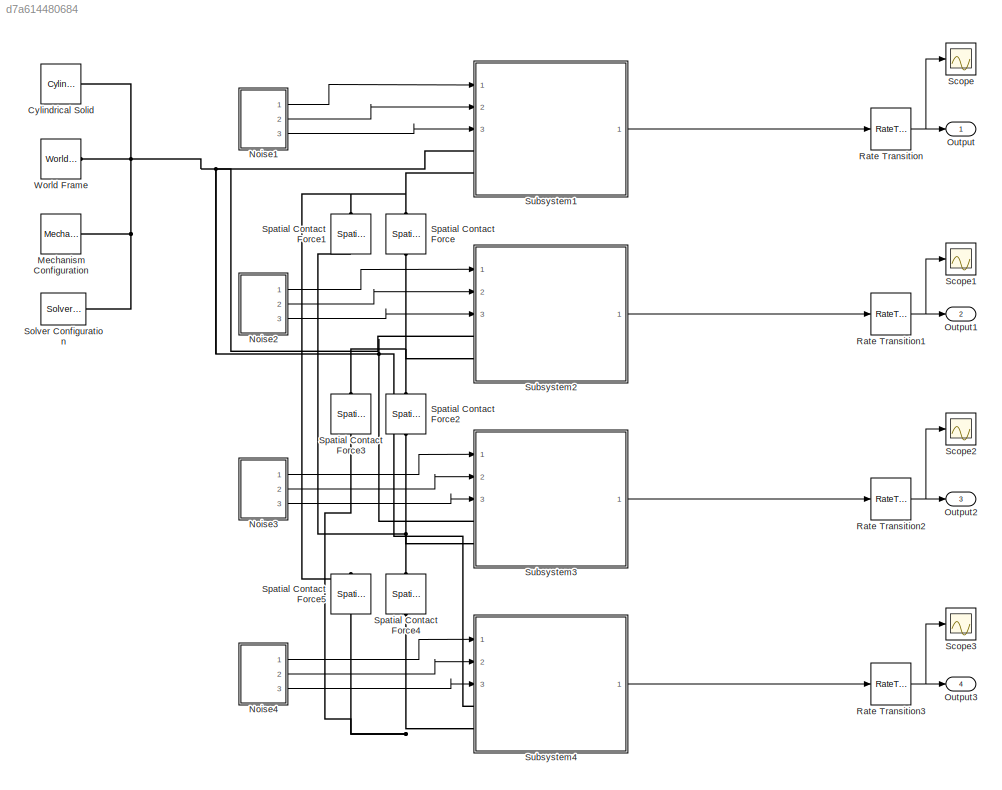
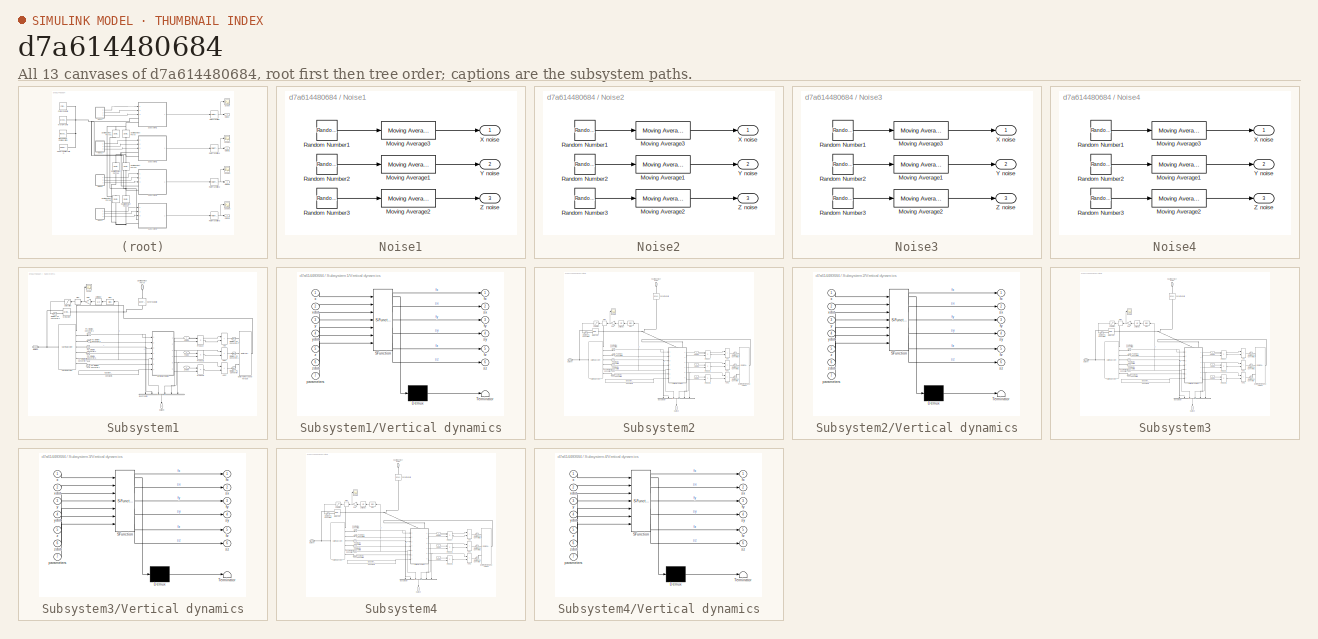
[diagram: thumbnail index - all 13 canvases of the model, root first then tree order]
MODEL slx_d7a614480684
KIND model
CONFIG AbsTol = auto
CONFIG EnableMultiTasking = off
CONFIG FixedStep = auto
CONFIG InitFcn = seed1 = randi(100000);\nseed2 = randi(200000);
CONFIG MaxStep = auto
CONFIG MinStep = auto
CONFIG RelTol = 1e-3
CONFIG SampleTimeConstraint = Unconstrained
CONFIG SolverName = VariableStepAuto
CONFIG StartTime = 0.0
CONFIG StopTime = 300
BLOCK [Reference] Cylindrical Solid  REF=sm_lib/Body Elements/Cylindrical Solid
  Ports = [0, 0, 0, 0, 0, 0, 1]
  SourceBlock = sm_lib/Body Elements/Cylindrical Solid
  SourceProductBaseCode = MS
  SourceType = Cylindrical Solid
BLOCK [Reference] Mechanism Configuration  REF=sm_lib/Utilities/Mechanism
Configuration
  Ports = [0, 0, 0, 0, 0, 0, 1]
  SourceBlock = sm_lib/Utilities/Mechanism\nConfiguration
  SourceProductBaseCode = MS
  SourceType = Mechanism\nConfiguration
BLOCK [SubSystem] Noise1
  Ports = [0, 3]
  RequestExecContextInheritance = off
BLOCK [Outport] Noise1/ Y noise
  Port = 2
BLOCK [Reference] Noise1/Moving Average1  REF=eeGeneralControl/Moving Average
  Ports = [1, 1]
  SourceBlock = eeGeneralControl/Moving Average
  SourceProductBaseCode = PS
  SourceType = Moving Average
BLOCK [Reference] Noise1/Moving Average2  REF=eeGeneralControl/Moving Average
  Ports = [1, 1]
  SourceBlock = eeGeneralControl/Moving Average
  SourceProductBaseCode = PS
  SourceType = Moving Average
BLOCK [Reference] Noise1/Moving Average3  REF=eeGeneralControl/Moving Average
  Ports = [1, 1]
  SourceBlock = eeGeneralControl/Moving Average
  SourceProductBaseCode = PS
  SourceType = Moving Average
BLOCK [RandomNumber] Noise1/Random Number1
  SampleTime = nS
  Seed = seedX1
  Variance = nH
BLOCK [RandomNumber] Noise1/Random Number2
  SampleTime = nS
  Seed = seedY1
  Variance = nH
BLOCK [RandomNumber] Noise1/Random Number3
  SampleTime = nS
  Seed = seedZ1
  Variance = nV
BLOCK [Outport] Noise1/X noise
BLOCK [Outport] Noise1/Z noise
  Port = 3
BLOCK [SubSystem] Noise2
  Ports = [0, 3]
  RequestExecContextInheritance = off
BLOCK [Outport] Noise2/ Y noise
  Port = 2
BLOCK [Reference] Noise2/Moving Average1  REF=eeGeneralControl/Moving Average
  Ports = [1, 1]
  SourceBlock = eeGeneralControl/Moving Average
  SourceProductBaseCode = PS
  SourceType = Moving Average
BLOCK [Reference] Noise2/Moving Average2  REF=eeGeneralControl/Moving Average
  Ports = [1, 1]
  SourceBlock = eeGeneralControl/Moving Average
  SourceProductBaseCode = PS
  SourceType = Moving Average
BLOCK [Reference] Noise2/Moving Average3  REF=eeGeneralControl/Moving Average
  Ports = [1, 1]
  SourceBlock = eeGeneralControl/Moving Average
  SourceProductBaseCode = PS
  SourceType = Moving Average
BLOCK [RandomNumber] Noise2/Random Number1
  SampleTime = nS
  Seed = seedX2
  Variance = nH
BLOCK [RandomNumber] Noise2/Random Number2
  SampleTime = nS
  Seed = seedY2
  Variance = nH
BLOCK [RandomNumber] Noise2/Random Number3
  SampleTime = nS
  Seed = seedZ2
  Variance = nV
BLOCK [Outport] Noise2/X noise
BLOCK [Outport] Noise2/Z noise
  Port = 3
BLOCK [SubSystem] Noise3
  Ports = [0, 3]
  RequestExecContextInheritance = off
BLOCK [Outport] Noise3/ Y noise
  Port = 2
BLOCK [Reference] Noise3/Moving Average1  REF=eeGeneralControl/Moving Average
  Ports = [1, 1]
  SourceBlock = eeGeneralControl/Moving Average
  SourceProductBaseCode = PS
  SourceType = Moving Average
BLOCK [Reference] Noise3/Moving Average2  REF=eeGeneralControl/Moving Average
  Ports = [1, 1]
  SourceBlock = eeGeneralControl/Moving Average
  SourceProductBaseCode = PS
  SourceType = Moving Average
BLOCK [Reference] Noise3/Moving Average3  REF=eeGeneralControl/Moving Average
  Ports = [1, 1]
  SourceBlock = eeGeneralControl/Moving Average
  SourceProductBaseCode = PS
  SourceType = Moving Average
BLOCK [RandomNumber] Noise3/Random Number1
  SampleTime = nS
  Seed = seedX3
  Variance = nH
BLOCK [RandomNumber] Noise3/Random Number2
  SampleTime = nS
  Seed = seedY3
  Variance = nH
BLOCK [RandomNumber] Noise3/Random Number3
  SampleTime = nS
  Seed = seedZ3
  Variance = nV
BLOCK [Outport] Noise3/X noise
BLOCK [Outport] Noise3/Z noise
  Port = 3
BLOCK [SubSystem] Noise4
  Ports = [0, 3]
  RequestExecContextInheritance = off
BLOCK [Outport] Noise4/ Y noise
  Port = 2
BLOCK [Reference] Noise4/Moving Average1  REF=eeGeneralControl/Moving Average
  Ports = [1, 1]
  SourceBlock = eeGeneralControl/Moving Average
  SourceProductBaseCode = PS
  SourceType = Moving Average
BLOCK [Reference] Noise4/Moving Average2  REF=eeGeneralControl/Moving Average
  Ports = [1, 1]
  SourceBlock = eeGeneralControl/Moving Average
  SourceProductBaseCode = PS
  SourceType = Moving Average
BLOCK [Reference] Noise4/Moving Average3  REF=eeGeneralControl/Moving Average
  Ports = [1, 1]
  SourceBlock = eeGeneralControl/Moving Average
  SourceProductBaseCode = PS
  SourceType = Moving Average
BLOCK [RandomNumber] Noise4/Random Number1
  SampleTime = nS
  Seed = seedX4
  Variance = nH
BLOCK [RandomNumber] Noise4/Random Number2
  SampleTime = nS
  Seed = seedY4
  Variance = nH
BLOCK [RandomNumber] Noise4/Random Number3
  SampleTime = nS
  Seed = seedZ4
  Variance = nV
BLOCK [Outport] Noise4/X noise
BLOCK [Outport] Noise4/Z noise
  Port = 3
BLOCK [Outport] Output
BLOCK [Outport] Output1
  Port = 2
BLOCK [Outport] Output2
  Port = 3
BLOCK [Outport] Output3
  Port = 4
BLOCK [RateTransition] Rate Transition
  OutPortSampleTime = 1/30
BLOCK [RateTransition] Rate Transition1
  OutPortSampleTime = 1/30
BLOCK [RateTransition] Rate Transition2
  OutPortSampleTime = 1/30
BLOCK [RateTransition] Rate Transition3
  OutPortSampleTime = 1/30
BLOCK [Scope] Scope
  Floating = off
  NumInputPorts = 1
  Ports = [1]
  ScopeSpecificationString = Simulink.scopes.TimeScopeBlockCfg('CurrentConfiguration', extmgr.ConfigurationSet(extmgr.Configuration('Core','General UI',true),extmgr.Configuration('Core','Source UI',true),extmgr.Configuration('Sources','WiredSimulink',true,'DataLoggingVariableName','ScopeData1'),extmgr.Configuration('Visuals','Time Domain',true,'SerializedDisplays',{struct('MinYLimReal','-1.07068','MaxYLimReal','1.0184','YLabe...<+1551ch>
BLOCK [Scope] Scope1
  Floating = off
  NumInputPorts = 1
  Ports = [1]
  ScopeSpecificationString = Simulink.scopes.TimeScopeBlockCfg('CurrentConfiguration', extmgr.ConfigurationSet(extmgr.Configuration('Core','General UI',true),extmgr.Configuration('Core','Source UI',true),extmgr.Configuration('Sources','WiredSimulink',true,'DataLoggingVariableName','ScopeData2'),extmgr.Configuration('Visuals','Time Domain',true,'SerializedDisplays',{struct('MinYLimReal','-157.50413','MaxYLimReal','351.95836','...<+1529ch>
BLOCK [Scope] Scope2
  Floating = off
  NumInputPorts = 1
  Ports = [1]
  ScopeSpecificationString = Simulink.scopes.TimeScopeBlockCfg('CurrentConfiguration', extmgr.ConfigurationSet(extmgr.Configuration('Core','General UI',true),extmgr.Configuration('Core','Source UI',true),extmgr.Configuration('Sources','WiredSimulink',true,'DataLoggingVariableName','ScopeData3'),extmgr.Configuration('Visuals','Time Domain',true,'SerializedDisplays',{struct('MinYLimReal','-175.75012','MaxYLimReal','108.87636','...<+1529ch>
BLOCK [Scope] Scope3
  Floating = off
  NumInputPorts = 1
  Ports = [1]
  ScopeSpecificationString = Simulink.scopes.TimeScopeBlockCfg('CurrentConfiguration', extmgr.ConfigurationSet(extmgr.Configuration('Core','General UI',true),extmgr.Configuration('Core','Source UI',true),extmgr.Configuration('Sources','WiredSimulink',true,'DataLoggingVariableName','ScopeData4'),extmgr.Configuration('Visuals','Time Domain',true,'SerializedDisplays',{struct('MinYLimReal','-2.50452','MaxYLimReal','31.25932','YLa...<+1563ch>
BLOCK [Reference] Solver Configuration  REF=nesl_utility/Solver
Configuration
  Ports = [0, 0, 0, 0, 0, 0, 1]
  SourceBlock = nesl_utility/Solver\nConfiguration
  SourceProductBaseCode = SS
  SourceType = Solver\nConfiguration
BLOCK [Reference] Spatial Contact Force  REF=sm_lib/Forces and
Torques/Spatial
Contact Force
  NameLocation = left
  Ports = [0, 0, 0, 0, 0, 1, 1]
  SourceBlock = sm_lib/Forces and\nTorques/Spatial\nContact Force
  SourceProductBaseCode = MS
  SourceType = Spatial\nContact Force
BLOCK [Reference] Spatial Contact Force1  REF=sm_lib/Forces and
Torques/Spatial
Contact Force
  NameLocation = left
  Ports = [0, 0, 0, 0, 0, 1, 1]
  SourceBlock = sm_lib/Forces and\nTorques/Spatial\nContact Force
  SourceProductBaseCode = MS
  SourceType = Spatial\nContact Force
BLOCK [Reference] Spatial Contact Force2  REF=sm_lib/Forces and
Torques/Spatial
Contact Force
  NameLocation = left
  Ports = [0, 0, 0, 0, 0, 1, 1]
  SourceBlock = sm_lib/Forces and\nTorques/Spatial\nContact Force
  SourceProductBaseCode = MS
  SourceType = Spatial\nContact Force
BLOCK [Reference] Spatial Contact Force3  REF=sm_lib/Forces and
Torques/Spatial
Contact Force
  NameLocation = left
  Ports = [0, 0, 0, 0, 0, 1, 1]
  SourceBlock = sm_lib/Forces and\nTorques/Spatial\nContact Force
  SourceProductBaseCode = MS
  SourceType = Spatial\nContact Force
BLOCK [Reference] Spatial Contact Force4  REF=sm_lib/Forces and
Torques/Spatial
Contact Force
  NameLocation = left
  Ports = [0, 0, 0, 0, 0, 1, 1]
  SourceBlock = sm_lib/Forces and\nTorques/Spatial\nContact Force
  SourceProductBaseCode = MS
  SourceType = Spatial\nContact Force
BLOCK [Reference] Spatial Contact Force5  REF=sm_lib/Forces and
Torques/Spatial
Contact Force
  NameLocation = left
  Ports = [0, 0, 0, 0, 0, 1, 1]
  SourceBlock = sm_lib/Forces and\nTorques/Spatial\nContact Force
  SourceProductBaseCode = MS
  SourceType = Spatial\nContact Force
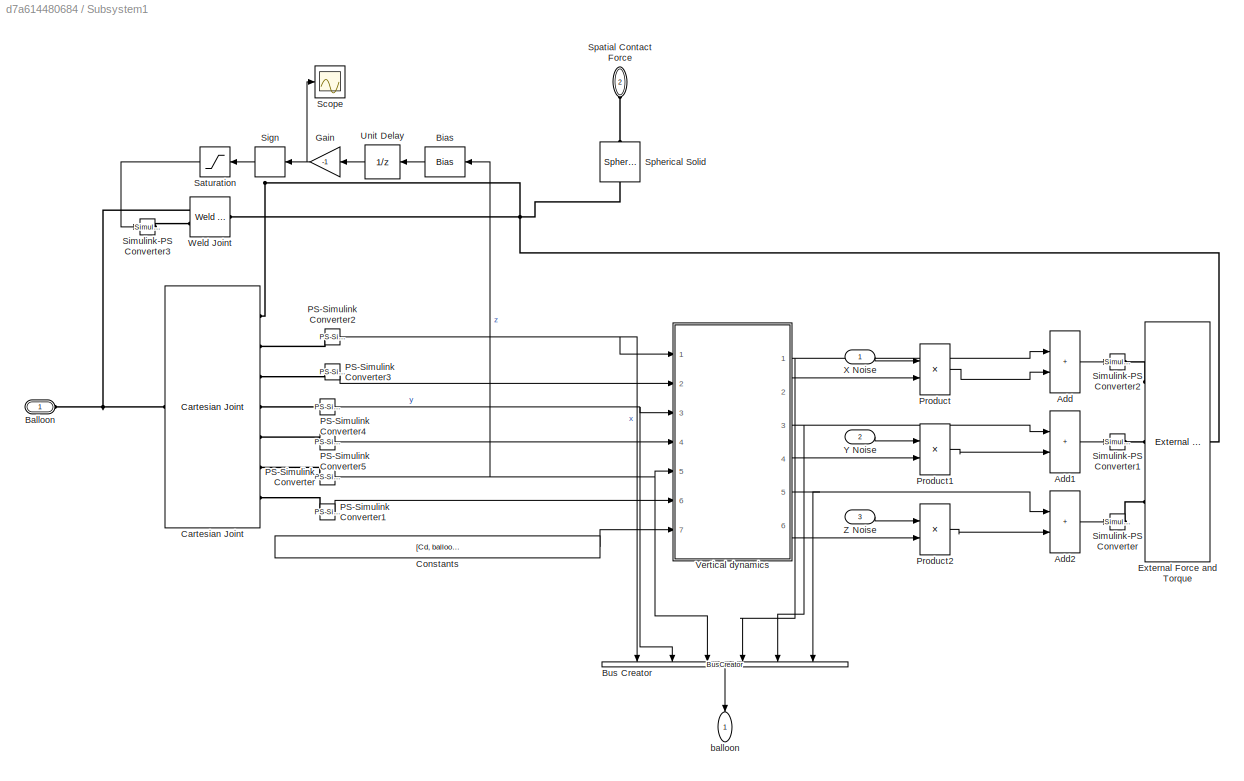
BLOCK [SubSystem] Subsystem1
  Ports = [3, 1, 0, 0, 0, 2]
  RequestExecContextInheritance = off
BLOCK [Sum] Subsystem1/Add
  IconShape = rectangular
  Ports = [2, 1]
BLOCK [Sum] Subsystem1/Add1
  IconShape = rectangular
  Ports = [2, 1]
BLOCK [Sum] Subsystem1/Add2
  IconShape = rectangular
  Ports = [2, 1]
BLOCK [PMIOPort] Subsystem1/Balloon
  Side = Left
BLOCK [Bias] Subsystem1/Bias
  Bias = balloonRadius
  NameLocation = top
  SaturateOnIntegerOverflow = off
BLOCK [BusCreator] Subsystem1/Bus Creator
  DisplayOption = bar
  InheritFromInputs = on
  Inputs = 6
  NameLocation = left
  Ports = [6, 1]
BLOCK [Reference] Subsystem1/Cartesian Joint  REF=sm_lib/Joints/Cartesian
Joint
  Ports = [0, 0, 0, 0, 0, 1, 7]
  SourceBlock = sm_lib/Joints/Cartesian\nJoint
  SourceProductBaseCode = MS
  SourceType = Cartesian\nJoint
BLOCK [Constant] Subsystem1/Constants
  Value = [Cd, balloonRadius, nozzleRadius, theta, V0, normalScaling]
BLOCK [Reference] Subsystem1/External Force and Torque  REF=sm_lib/Forces and
Torques/External Force
and Torque
  Ports = [0, 0, 0, 0, 0, 3, 1]
  SourceBlock = sm_lib/Forces and\nTorques/External Force\nand Torque
  SourceProductBaseCode = MS
  SourceType = External Force\nand Torque
BLOCK [Gain] Subsystem1/Gain
  Gain = -1
  NameLocation = top
BLOCK [Reference] Subsystem1/PS-Simulink Converter  REF=nesl_utility/PS-Simulink
Converter
  Ports = [0, 1, 0, 0, 0, 1]
  SourceBlock = nesl_utility/PS-Simulink\nConverter
  SourceProductBaseCode = SS
  SourceType = PS-Simulink\nConverter
BLOCK [Reference] Subsystem1/PS-Simulink Converter1  REF=nesl_utility/PS-Simulink
Converter
  Ports = [0, 1, 0, 0, 0, 1]
  SourceBlock = nesl_utility/PS-Simulink\nConverter
  SourceProductBaseCode = SS
  SourceType = PS-Simulink\nConverter
BLOCK [Reference] Subsystem1/PS-Simulink Converter2  REF=nesl_utility/PS-Simulink
Converter
  Ports = [0, 1, 0, 0, 0, 1]
  SourceBlock = nesl_utility/PS-Simulink\nConverter
  SourceProductBaseCode = SS
  SourceType = PS-Simulink\nConverter
BLOCK [Reference] Subsystem1/PS-Simulink Converter3  REF=nesl_utility/PS-Simulink
Converter
  Ports = [0, 1, 0, 0, 0, 1]
  SourceBlock = nesl_utility/PS-Simulink\nConverter
  SourceProductBaseCode = SS
  SourceType = PS-Simulink\nConverter
BLOCK [Reference] Subsystem1/PS-Simulink Converter4  REF=nesl_utility/PS-Simulink
Converter
  Ports = [0, 1, 0, 0, 0, 1]
  SourceBlock = nesl_utility/PS-Simulink\nConverter
  SourceProductBaseCode = SS
  SourceType = PS-Simulink\nConverter
BLOCK [Reference] Subsystem1/PS-Simulink Converter5  REF=nesl_utility/PS-Simulink
Converter
  Ports = [0, 1, 0, 0, 0, 1]
  SourceBlock = nesl_utility/PS-Simulink\nConverter
  SourceProductBaseCode = SS
  SourceType = PS-Simulink\nConverter
BLOCK [Product] Subsystem1/Product
  Ports = [2, 1]
BLOCK [Product] Subsystem1/Product1
  Ports = [2, 1]
BLOCK [Product] Subsystem1/Product2
  Ports = [2, 1]
BLOCK [Saturate] Subsystem1/Saturation
  LowerLimit = -1
  NameLocation = top
  UpperLimit = 0
BLOCK [Scope] Subsystem1/Scope
  Floating = off
  NumInputPorts = 1
  Ports = [1]
  ScopeSpecificationString = Simulink.scopes.TimeScopeBlockCfg('CurrentConfiguration', extmgr.ConfigurationSet(extmgr.Configuration('Core','General UI',true),extmgr.Configuration('Core','Source UI',true),extmgr.Configuration('Sources','WiredSimulink',true,'DataLoggingVariableName','ScopeData2'),extmgr.Configuration('Visuals','Time Domain',true,'SerializedDisplays',{struct('MinYLimReal','-2.54822','MaxYLimReal','0.3081','YLabe...<+1391ch>
BLOCK [Signum] Subsystem1/Sign
  NameLocation = top
BLOCK [Reference] Subsystem1/Simulink-PS Converter  REF=nesl_utility/Simulink-PS
Converter
  Ports = [1, 0, 0, 0, 0, 0, 1]
  SourceBlock = nesl_utility/Simulink-PS\nConverter
  SourceProductBaseCode = SS
  SourceType = Simulink-PS\nConverter
BLOCK [Reference] Subsystem1/Simulink-PS Converter1  REF=nesl_utility/Simulink-PS
Converter
  Ports = [1, 0, 0, 0, 0, 0, 1]
  SourceBlock = nesl_utility/Simulink-PS\nConverter
  SourceProductBaseCode = SS
  SourceType = Simulink-PS\nConverter
BLOCK [Reference] Subsystem1/Simulink-PS Converter2  REF=nesl_utility/Simulink-PS
Converter
  Ports = [1, 0, 0, 0, 0, 0, 1]
  SourceBlock = nesl_utility/Simulink-PS\nConverter
  SourceProductBaseCode = SS
  SourceType = Simulink-PS\nConverter
BLOCK [Reference] Subsystem1/Simulink-PS Converter3  REF=nesl_utility/Simulink-PS
Converter
  Ports = [1, 0, 0, 0, 0, 0, 1]
  SourceBlock = nesl_utility/Simulink-PS\nConverter
  SourceProductBaseCode = SS
  SourceType = Simulink-PS\nConverter
BLOCK [PMIOPort] Subsystem1/Spatial Contact Force
  NameLocation = left
  Port = 2
  Side = Left
BLOCK [Reference] Subsystem1/Spherical Solid  REF=sm_lib/Body Elements/Spherical Solid
  NameLocation = left
  Ports = [0, 0, 0, 0, 0, 1, 1]
  SourceBlock = sm_lib/Body Elements/Spherical Solid
  SourceProductBaseCode = MS
  SourceType = Spherical Solid
BLOCK [UnitDelay] Subsystem1/Unit Delay
  HasFrameUpgradeWarning = on
  InitialCondition = initialHeight+balloonRadius
  NameLocation = top
  SampleTime = 0.01
BLOCK [SubSystem] Subsystem1/Vertical dynamics
  ErrorFcn = Stateflow.Translate.translate
  PermitHierarchicalResolution = ExplicitOnly
  Ports = [7, 6]
  RequestExecContextInheritance = off
  SFBlockType = MATLAB Function
  TreatAsAtomicUnit = on
BLOCK [Demux] Subsystem1/Vertical dynamics/ Demux 
  Outputs = 1
  Ports = [1, 1]
BLOCK [S-Function] Subsystem1/Vertical dynamics/ SFunction 
  EnableBusSupport = on
  FunctionName = sf_sfun
  PortCounts = [7 7]
  Ports = [7, 7]
  SFcnIsStateOwnerBlock = off
  SFunctionDeploymentMode = off
  Tag = Stateflow S-Function 2
BLOCK [Terminator] Subsystem1/Vertical dynamics/ Terminator 
BLOCK [Outport] Subsystem1/Vertical dynamics/fx
BLOCK [Outport] Subsystem1/Vertical dynamics/fy
  Port = 3
BLOCK [Outport] Subsystem1/Vertical dynamics/fz
  Port = 5
BLOCK [Inport] Subsystem1/Vertical dynamics/parameters
  Port = 7
BLOCK [Outport] Subsystem1/Vertical dynamics/sx
  Port = 2
BLOCK [Outport] Subsystem1/Vertical dynamics/sy
  Port = 4
BLOCK [Outport] Subsystem1/Vertical dynamics/sz
  Port = 6
BLOCK [Inport] Subsystem1/Vertical dynamics/x
BLOCK [Inport] Subsystem1/Vertical dynamics/xdot
  Port = 2
BLOCK [Inport] Subsystem1/Vertical dynamics/y
  Port = 3
BLOCK [Inport] Subsystem1/Vertical dynamics/ydot
  Port = 4
BLOCK [Inport] Subsystem1/Vertical dynamics/z
  Port = 5
BLOCK [Inport] Subsystem1/Vertical dynamics/zdot
  Port = 6
BLOCK [Reference] Subsystem1/Weld Joint  REF=sm_lib/Joints/Weld Joint
  Ports = [0, 0, 0, 0, 0, 2, 1]
  SourceBlock = sm_lib/Joints/Weld Joint
  SourceProductBaseCode = MS
  SourceType = Weld Joint
BLOCK [Inport] Subsystem1/X Noise
BLOCK [Inport] Subsystem1/Y Noise
  Port = 2
BLOCK [Inport] Subsystem1/Z Noise
  Port = 3
BLOCK [Outport] Subsystem1/balloon
  NameLocation = left
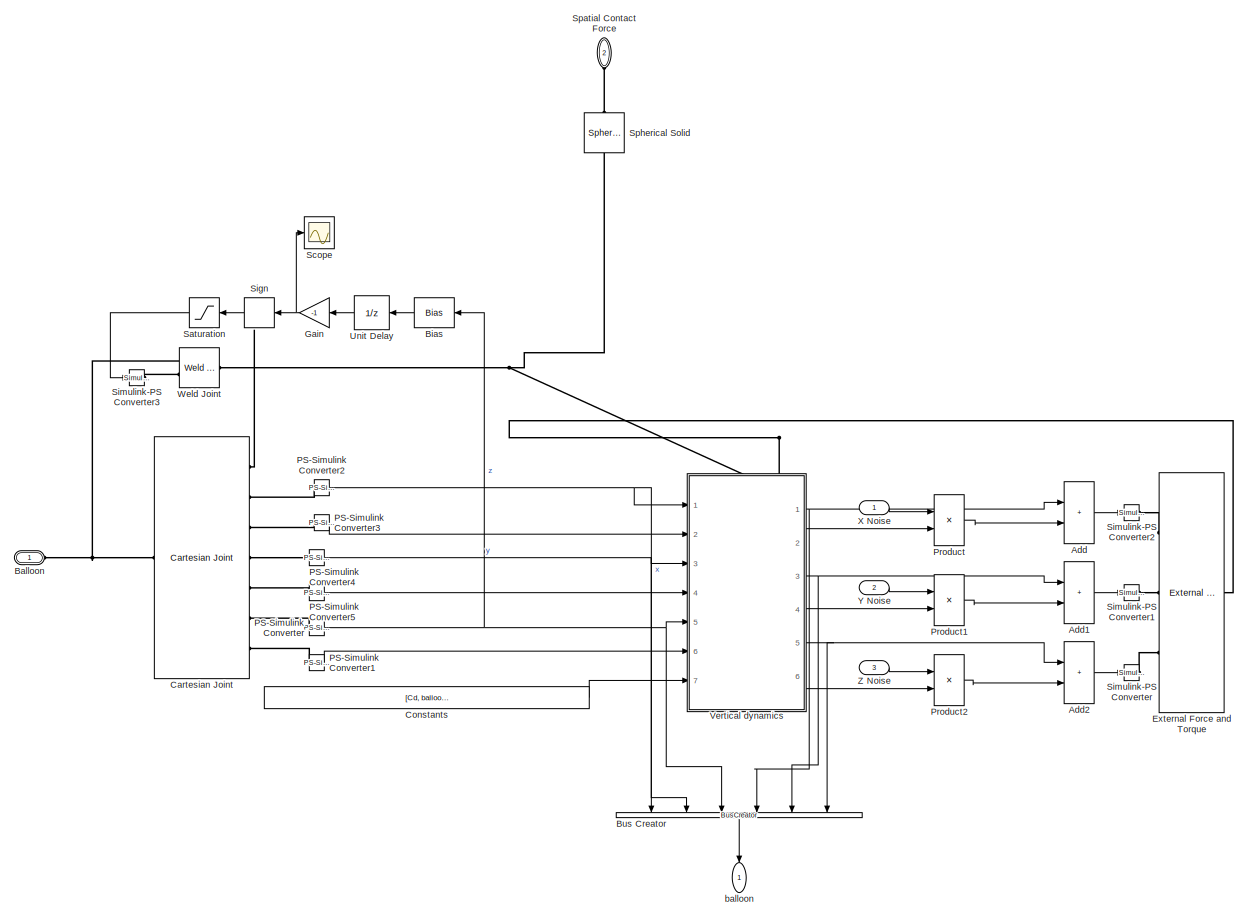
[diagram: Subsystem2 - part 1/1, most of the canvas]
BLOCK [SubSystem] Subsystem2
  Ports = [3, 1, 0, 0, 0, 2]
  RequestExecContextInheritance = off
BLOCK [Sum] Subsystem2/Add
  IconShape = rectangular
  Ports = [2, 1]
BLOCK [Sum] Subsystem2/Add1
  IconShape = rectangular
  Ports = [2, 1]
BLOCK [Sum] Subsystem2/Add2
  IconShape = rectangular
  Ports = [2, 1]
BLOCK [PMIOPort] Subsystem2/Balloon
  Side = Left
BLOCK [Bias] Subsystem2/Bias
  Bias = balloonRadius
  NameLocation = top
  SaturateOnIntegerOverflow = off
BLOCK [BusCreator] Subsystem2/Bus Creator
  DisplayOption = bar
  InheritFromInputs = on
  Inputs = 6
  NameLocation = left
  Ports = [6, 1]
BLOCK [Reference] Subsystem2/Cartesian Joint  REF=sm_lib/Joints/Cartesian
Joint
  Ports = [0, 0, 0, 0, 0, 1, 7]
  SourceBlock = sm_lib/Joints/Cartesian\nJoint
  SourceProductBaseCode = MS
  SourceType = Cartesian\nJoint
BLOCK [Constant] Subsystem2/Constants
  Value = [Cd, balloonRadius, nozzleRadius, theta, V0, normalScaling]
BLOCK [Reference] Subsystem2/External Force and Torque  REF=sm_lib/Forces and
Torques/External Force
and Torque
  Ports = [0, 0, 0, 0, 0, 3, 1]
  SourceBlock = sm_lib/Forces and\nTorques/External Force\nand Torque
  SourceProductBaseCode = MS
  SourceType = External Force\nand Torque
BLOCK [Gain] Subsystem2/Gain
  Gain = -1
  NameLocation = top
BLOCK [Reference] Subsystem2/PS-Simulink Converter  REF=nesl_utility/PS-Simulink
Converter
  Ports = [0, 1, 0, 0, 0, 1]
  SourceBlock = nesl_utility/PS-Simulink\nConverter
  SourceProductBaseCode = SS
  SourceType = PS-Simulink\nConverter
BLOCK [Reference] Subsystem2/PS-Simulink Converter1  REF=nesl_utility/PS-Simulink
Converter
  Ports = [0, 1, 0, 0, 0, 1]
  SourceBlock = nesl_utility/PS-Simulink\nConverter
  SourceProductBaseCode = SS
  SourceType = PS-Simulink\nConverter
BLOCK [Reference] Subsystem2/PS-Simulink Converter2  REF=nesl_utility/PS-Simulink
Converter
  Ports = [0, 1, 0, 0, 0, 1]
  SourceBlock = nesl_utility/PS-Simulink\nConverter
  SourceProductBaseCode = SS
  SourceType = PS-Simulink\nConverter
BLOCK [Reference] Subsystem2/PS-Simulink Converter3  REF=nesl_utility/PS-Simulink
Converter
  Ports = [0, 1, 0, 0, 0, 1]
  SourceBlock = nesl_utility/PS-Simulink\nConverter
  SourceProductBaseCode = SS
  SourceType = PS-Simulink\nConverter
BLOCK [Reference] Subsystem2/PS-Simulink Converter4  REF=nesl_utility/PS-Simulink
Converter
  Ports = [0, 1, 0, 0, 0, 1]
  SourceBlock = nesl_utility/PS-Simulink\nConverter
  SourceProductBaseCode = SS
  SourceType = PS-Simulink\nConverter
BLOCK [Reference] Subsystem2/PS-Simulink Converter5  REF=nesl_utility/PS-Simulink
Converter
  Ports = [0, 1, 0, 0, 0, 1]
  SourceBlock = nesl_utility/PS-Simulink\nConverter
  SourceProductBaseCode = SS
  SourceType = PS-Simulink\nConverter
BLOCK [Product] Subsystem2/Product
  Ports = [2, 1]
BLOCK [Product] Subsystem2/Product1
  Ports = [2, 1]
BLOCK [Product] Subsystem2/Product2
  Ports = [2, 1]
BLOCK [Saturate] Subsystem2/Saturation
  LowerLimit = -1
  NameLocation = top
  UpperLimit = 0
BLOCK [Scope] Subsystem2/Scope
  Floating = off
  NumInputPorts = 1
  Ports = [1]
  ScopeSpecificationString = Simulink.scopes.TimeScopeBlockCfg('CurrentConfiguration', extmgr.ConfigurationSet(extmgr.Configuration('Core','General UI',true),extmgr.Configuration('Core','Source UI',true),extmgr.Configuration('Sources','WiredSimulink',true,'DataLoggingVariableName','ScopeData2'),extmgr.Configuration('Visuals','Time Domain',true,'SerializedDisplays',{struct('MinYLimReal','-0.54','MaxYLimReal','-0.34','YLabelRea...<+1377ch>
BLOCK [Signum] Subsystem2/Sign
  NameLocation = top
BLOCK [Reference] Subsystem2/Simulink-PS Converter  REF=nesl_utility/Simulink-PS
Converter
  Ports = [1, 0, 0, 0, 0, 0, 1]
  SourceBlock = nesl_utility/Simulink-PS\nConverter
  SourceProductBaseCode = SS
  SourceType = Simulink-PS\nConverter
BLOCK [Reference] Subsystem2/Simulink-PS Converter1  REF=nesl_utility/Simulink-PS
Converter
  Ports = [1, 0, 0, 0, 0, 0, 1]
  SourceBlock = nesl_utility/Simulink-PS\nConverter
  SourceProductBaseCode = SS
  SourceType = Simulink-PS\nConverter
BLOCK [Reference] Subsystem2/Simulink-PS Converter2  REF=nesl_utility/Simulink-PS
Converter
  Ports = [1, 0, 0, 0, 0, 0, 1]
  SourceBlock = nesl_utility/Simulink-PS\nConverter
  SourceProductBaseCode = SS
  SourceType = Simulink-PS\nConverter
BLOCK [Reference] Subsystem2/Simulink-PS Converter3  REF=nesl_utility/Simulink-PS
Converter
  Ports = [1, 0, 0, 0, 0, 0, 1]
  SourceBlock = nesl_utility/Simulink-PS\nConverter
  SourceProductBaseCode = SS
  SourceType = Simulink-PS\nConverter
BLOCK [PMIOPort] Subsystem2/Spatial Contact Force
  NameLocation = left
  Port = 2
  Side = Left
BLOCK [Reference] Subsystem2/Spherical Solid  REF=sm_lib/Body Elements/Spherical Solid
  NameLocation = left
  Ports = [0, 0, 0, 0, 0, 1, 1]
  SourceBlock = sm_lib/Body Elements/Spherical Solid
  SourceProductBaseCode = MS
  SourceType = Spherical Solid
BLOCK [UnitDelay] Subsystem2/Unit Delay
  HasFrameUpgradeWarning = on
  InitialCondition = initialHeight+balloonRadius
  NameLocation = top
  SampleTime = 0.01
BLOCK [SubSystem] Subsystem2/Vertical dynamics
  ErrorFcn = Stateflow.Translate.translate
  PermitHierarchicalResolution = ExplicitOnly
  Ports = [7, 6]
  RequestExecContextInheritance = off
  SFBlockType = MATLAB Function
  TreatAsAtomicUnit = on
BLOCK [Demux] Subsystem2/Vertical dynamics/ Demux 
  Outputs = 1
  Ports = [1, 1]
BLOCK [S-Function] Subsystem2/Vertical dynamics/ SFunction 
  EnableBusSupport = on
  FunctionName = sf_sfun
  PortCounts = [7 7]
  Ports = [7, 7]
  SFcnIsStateOwnerBlock = off
  SFunctionDeploymentMode = off
  Tag = Stateflow S-Function 1
BLOCK [Terminator] Subsystem2/Vertical dynamics/ Terminator 
BLOCK [Outport] Subsystem2/Vertical dynamics/fx
BLOCK [Outport] Subsystem2/Vertical dynamics/fy
  Port = 3
BLOCK [Outport] Subsystem2/Vertical dynamics/fz
  Port = 5
BLOCK [Inport] Subsystem2/Vertical dynamics/parameters
  Port = 7
BLOCK [Outport] Subsystem2/Vertical dynamics/sx
  Port = 2
BLOCK [Outport] Subsystem2/Vertical dynamics/sy
  Port = 4
BLOCK [Outport] Subsystem2/Vertical dynamics/sz
  Port = 6
BLOCK [Inport] Subsystem2/Vertical dynamics/x
BLOCK [Inport] Subsystem2/Vertical dynamics/xdot
  Port = 2
BLOCK [Inport] Subsystem2/Vertical dynamics/y
  Port = 3
BLOCK [Inport] Subsystem2/Vertical dynamics/ydot
  Port = 4
BLOCK [Inport] Subsystem2/Vertical dynamics/z
  Port = 5
BLOCK [Inport] Subsystem2/Vertical dynamics/zdot
  Port = 6
BLOCK [Reference] Subsystem2/Weld Joint  REF=sm_lib/Joints/Weld Joint
  Ports = [0, 0, 0, 0, 0, 2, 1]
  SourceBlock = sm_lib/Joints/Weld Joint
  SourceProductBaseCode = MS
  SourceType = Weld Joint
BLOCK [Inport] Subsystem2/X Noise
BLOCK [Inport] Subsystem2/Y Noise
  Port = 2
BLOCK [Inport] Subsystem2/Z Noise
  Port = 3
BLOCK [Outport] Subsystem2/balloon
  NameLocation = left
BLOCK [SubSystem] Subsystem3
  Ports = [3, 1, 0, 0, 0, 2]
  RequestExecContextInheritance = off
BLOCK [Sum] Subsystem3/Add
  IconShape = rectangular
  Ports = [2, 1]
BLOCK [Sum] Subsystem3/Add1
  IconShape = rectangular
  Ports = [2, 1]
BLOCK [Sum] Subsystem3/Add2
  IconShape = rectangular
  Ports = [2, 1]
BLOCK [PMIOPort] Subsystem3/Balloon
  Side = Left
BLOCK [Bias] Subsystem3/Bias
  Bias = balloonRadius
  NameLocation = top
  SaturateOnIntegerOverflow = off
BLOCK [BusCreator] Subsystem3/Bus Creator
  DisplayOption = bar
  InheritFromInputs = on
  Inputs = 6
  NameLocation = left
  Ports = [6, 1]
BLOCK [Reference] Subsystem3/Cartesian Joint  REF=sm_lib/Joints/Cartesian
Joint
  Ports = [0, 0, 0, 0, 0, 1, 7]
  SourceBlock = sm_lib/Joints/Cartesian\nJoint
  SourceProductBaseCode = MS
  SourceType = Cartesian\nJoint
BLOCK [Constant] Subsystem3/Constants
  Value = [Cd, balloonRadius, nozzleRadius, theta, V0, normalScaling]
BLOCK [Reference] Subsystem3/External Force and Torque  REF=sm_lib/Forces and
Torques/External Force
and Torque
  Ports = [0, 0, 0, 0, 0, 3, 1]
  SourceBlock = sm_lib/Forces and\nTorques/External Force\nand Torque
  SourceProductBaseCode = MS
  SourceType = External Force\nand Torque
BLOCK [Gain] Subsystem3/Gain
  Gain = -1
  NameLocation = top
BLOCK [Reference] Subsystem3/PS-Simulink Converter  REF=nesl_utility/PS-Simulink
Converter
  Ports = [0, 1, 0, 0, 0, 1]
  SourceBlock = nesl_utility/PS-Simulink\nConverter
  SourceProductBaseCode = SS
  SourceType = PS-Simulink\nConverter
BLOCK [Reference] Subsystem3/PS-Simulink Converter1  REF=nesl_utility/PS-Simulink
Converter
  Ports = [0, 1, 0, 0, 0, 1]
  SourceBlock = nesl_utility/PS-Simulink\nConverter
  SourceProductBaseCode = SS
  SourceType = PS-Simulink\nConverter
BLOCK [Reference] Subsystem3/PS-Simulink Converter2  REF=nesl_utility/PS-Simulink
Converter
  Ports = [0, 1, 0, 0, 0, 1]
  SourceBlock = nesl_utility/PS-Simulink\nConverter
  SourceProductBaseCode = SS
  SourceType = PS-Simulink\nConverter
BLOCK [Reference] Subsystem3/PS-Simulink Converter3  REF=nesl_utility/PS-Simulink
Converter
  Ports = [0, 1, 0, 0, 0, 1]
  SourceBlock = nesl_utility/PS-Simulink\nConverter
  SourceProductBaseCode = SS
  SourceType = PS-Simulink\nConverter
BLOCK [Reference] Subsystem3/PS-Simulink Converter4  REF=nesl_utility/PS-Simulink
Converter
  Ports = [0, 1, 0, 0, 0, 1]
  SourceBlock = nesl_utility/PS-Simulink\nConverter
  SourceProductBaseCode = SS
  SourceType = PS-Simulink\nConverter
BLOCK [Reference] Subsystem3/PS-Simulink Converter5  REF=nesl_utility/PS-Simulink
Converter
  Ports = [0, 1, 0, 0, 0, 1]
  SourceBlock = nesl_utility/PS-Simulink\nConverter
  SourceProductBaseCode = SS
  SourceType = PS-Simulink\nConverter
BLOCK [Product] Subsystem3/Product
  Ports = [2, 1]
BLOCK [Product] Subsystem3/Product1
  Ports = [2, 1]
BLOCK [Product] Subsystem3/Product2
  Ports = [2, 1]
BLOCK [Saturate] Subsystem3/Saturation
  LowerLimit = -1
  NameLocation = top
  UpperLimit = 0
BLOCK [Scope] Subsystem3/Scope
  Floating = off
  NumInputPorts = 1
  Ports = [1]
  ScopeSpecificationString = Simulink.scopes.TimeScopeBlockCfg('CurrentConfiguration', extmgr.ConfigurationSet(extmgr.Configuration('Core','General UI',true),extmgr.Configuration('Core','Source UI',true),extmgr.Configuration('Sources','WiredSimulink',true,'DataLoggingVariableName','ScopeData2'),extmgr.Configuration('Visuals','Time Domain',true,'SerializedDisplays',{struct('MinYLimReal','-2.22022','MaxYLimReal','0.25108','YLab...<+1393ch>
BLOCK [Signum] Subsystem3/Sign
  NameLocation = top
BLOCK [Reference] Subsystem3/Simulink-PS Converter  REF=nesl_utility/Simulink-PS
Converter
  Ports = [1, 0, 0, 0, 0, 0, 1]
  SourceBlock = nesl_utility/Simulink-PS\nConverter
  SourceProductBaseCode = SS
  SourceType = Simulink-PS\nConverter
BLOCK [Reference] Subsystem3/Simulink-PS Converter1  REF=nesl_utility/Simulink-PS
Converter
  Ports = [1, 0, 0, 0, 0, 0, 1]
  SourceBlock = nesl_utility/Simulink-PS\nConverter
  SourceProductBaseCode = SS
  SourceType = Simulink-PS\nConverter
BLOCK [Reference] Subsystem3/Simulink-PS Converter2  REF=nesl_utility/Simulink-PS
Converter
  Ports = [1, 0, 0, 0, 0, 0, 1]
  SourceBlock = nesl_utility/Simulink-PS\nConverter
  SourceProductBaseCode = SS
  SourceType = Simulink-PS\nConverter
BLOCK [Reference] Subsystem3/Simulink-PS Converter3  REF=nesl_utility/Simulink-PS
Converter
  Ports = [1, 0, 0, 0, 0, 0, 1]
  SourceBlock = nesl_utility/Simulink-PS\nConverter
  SourceProductBaseCode = SS
  SourceType = Simulink-PS\nConverter
BLOCK [PMIOPort] Subsystem3/Spatial Contact Force
  NameLocation = left
  Port = 2
  Side = Left
BLOCK [Reference] Subsystem3/Spherical Solid  REF=sm_lib/Body Elements/Spherical Solid
  NameLocation = left
  Ports = [0, 0, 0, 0, 0, 1, 1]
  SourceBlock = sm_lib/Body Elements/Spherical Solid
  SourceProductBaseCode = MS
  SourceType = Spherical Solid
BLOCK [UnitDelay] Subsystem3/Unit Delay
  HasFrameUpgradeWarning = on
  InitialCondition = initialHeight+balloonRadius
  NameLocation = top
  SampleTime = 0.01
BLOCK [SubSystem] Subsystem3/Vertical dynamics
  ErrorFcn = Stateflow.Translate.translate
  PermitHierarchicalResolution = ExplicitOnly
  Ports = [7, 6]
  RequestExecContextInheritance = off
  SFBlockType = MATLAB Function
  TreatAsAtomicUnit = on
BLOCK [Demux] Subsystem3/Vertical dynamics/ Demux 
  Outputs = 1
  Ports = [1, 1]
BLOCK [S-Function] Subsystem3/Vertical dynamics/ SFunction 
  EnableBusSupport = on
  FunctionName = sf_sfun
  PortCounts = [7 7]
  Ports = [7, 7]
  SFcnIsStateOwnerBlock = off
  SFunctionDeploymentMode = off
  Tag = Stateflow S-Function 4
BLOCK [Terminator] Subsystem3/Vertical dynamics/ Terminator 
BLOCK [Outport] Subsystem3/Vertical dynamics/fx
BLOCK [Outport] Subsystem3/Vertical dynamics/fy
  Port = 3
BLOCK [Outport] Subsystem3/Vertical dynamics/fz
  Port = 5
BLOCK [Inport] Subsystem3/Vertical dynamics/parameters
  Port = 7
BLOCK [Outport] Subsystem3/Vertical dynamics/sx
  Port = 2
BLOCK [Outport] Subsystem3/Vertical dynamics/sy
  Port = 4
BLOCK [Outport] Subsystem3/Vertical dynamics/sz
  Port = 6
BLOCK [Inport] Subsystem3/Vertical dynamics/x
BLOCK [Inport] Subsystem3/Vertical dynamics/xdot
  Port = 2
BLOCK [Inport] Subsystem3/Vertical dynamics/y
  Port = 3
BLOCK [Inport] Subsystem3/Vertical dynamics/ydot
  Port = 4
BLOCK [Inport] Subsystem3/Vertical dynamics/z
  Port = 5
BLOCK [Inport] Subsystem3/Vertical dynamics/zdot
  Port = 6
BLOCK [Reference] Subsystem3/Weld Joint  REF=sm_lib/Joints/Weld Joint
  Ports = [0, 0, 0, 0, 0, 2, 1]
  SourceBlock = sm_lib/Joints/Weld Joint
  SourceProductBaseCode = MS
  SourceType = Weld Joint
BLOCK [Inport] Subsystem3/X Noise
BLOCK [Inport] Subsystem3/Y Noise
  Port = 2
BLOCK [Inport] Subsystem3/Z Noise
  Port = 3
BLOCK [Outport] Subsystem3/balloon
  NameLocation = left
BLOCK [SubSystem] Subsystem4
  Ports = [3, 1, 0, 0, 0, 2]
  RequestExecContextInheritance = off
BLOCK [Sum] Subsystem4/Add
  IconShape = rectangular
  Ports = [2, 1]
BLOCK [Sum] Subsystem4/Add1
  IconShape = rectangular
  Ports = [2, 1]
BLOCK [Sum] Subsystem4/Add2
  IconShape = rectangular
  Ports = [2, 1]
BLOCK [PMIOPort] Subsystem4/Balloon
  Side = Left
BLOCK [Bias] Subsystem4/Bias
  Bias = balloonRadius
  NameLocation = top
  SaturateOnIntegerOverflow = off
BLOCK [BusCreator] Subsystem4/Bus Creator
  DisplayOption = bar
  InheritFromInputs = on
  Inputs = 6
  NameLocation = left
  Ports = [6, 1]
BLOCK [Reference] Subsystem4/Cartesian Joint  REF=sm_lib/Joints/Cartesian
Joint
  Ports = [0, 0, 0, 0, 0, 1, 7]
  SourceBlock = sm_lib/Joints/Cartesian\nJoint
  SourceProductBaseCode = MS
  SourceType = Cartesian\nJoint
BLOCK [Constant] Subsystem4/Constants
  Value = [Cd, balloonRadius, nozzleRadius, theta, V0, normalScaling]
BLOCK [Reference] Subsystem4/External Force and Torque  REF=sm_lib/Forces and
Torques/External Force
and Torque
  Ports = [0, 0, 0, 0, 0, 3, 1]
  SourceBlock = sm_lib/Forces and\nTorques/External Force\nand Torque
  SourceProductBaseCode = MS
  SourceType = External Force\nand Torque
BLOCK [Gain] Subsystem4/Gain
  Gain = -1
  NameLocation = top
BLOCK [Reference] Subsystem4/PS-Simulink Converter  REF=nesl_utility/PS-Simulink
Converter
  Ports = [0, 1, 0, 0, 0, 1]
  SourceBlock = nesl_utility/PS-Simulink\nConverter
  SourceProductBaseCode = SS
  SourceType = PS-Simulink\nConverter
BLOCK [Reference] Subsystem4/PS-Simulink Converter1  REF=nesl_utility/PS-Simulink
Converter
  Ports = [0, 1, 0, 0, 0, 1]
  SourceBlock = nesl_utility/PS-Simulink\nConverter
  SourceProductBaseCode = SS
  SourceType = PS-Simulink\nConverter
BLOCK [Reference] Subsystem4/PS-Simulink Converter2  REF=nesl_utility/PS-Simulink
Converter
  Ports = [0, 1, 0, 0, 0, 1]
  SourceBlock = nesl_utility/PS-Simulink\nConverter
  SourceProductBaseCode = SS
  SourceType = PS-Simulink\nConverter
BLOCK [Reference] Subsystem4/PS-Simulink Converter3  REF=nesl_utility/PS-Simulink
Converter
  Ports = [0, 1, 0, 0, 0, 1]
  SourceBlock = nesl_utility/PS-Simulink\nConverter
  SourceProductBaseCode = SS
  SourceType = PS-Simulink\nConverter
BLOCK [Reference] Subsystem4/PS-Simulink Converter4  REF=nesl_utility/PS-Simulink
Converter
  Ports = [0, 1, 0, 0, 0, 1]
  SourceBlock = nesl_utility/PS-Simulink\nConverter
  SourceProductBaseCode = SS
  SourceType = PS-Simulink\nConverter
BLOCK [Reference] Subsystem4/PS-Simulink Converter5  REF=nesl_utility/PS-Simulink
Converter
  Ports = [0, 1, 0, 0, 0, 1]
  SourceBlock = nesl_utility/PS-Simulink\nConverter
  SourceProductBaseCode = SS
  SourceType = PS-Simulink\nConverter
BLOCK [Product] Subsystem4/Product
  Ports = [2, 1]
BLOCK [Product] Subsystem4/Product1
  Ports = [2, 1]
BLOCK [Product] Subsystem4/Product2
  Ports = [2, 1]
BLOCK [Saturate] Subsystem4/Saturation
  LowerLimit = -1
  NameLocation = top
  UpperLimit = 0
BLOCK [Scope] Subsystem4/Scope
  Floating = off
  NumInputPorts = 1
  Ports = [1]
  ScopeSpecificationString = Simulink.scopes.TimeScopeBlockCfg('CurrentConfiguration', extmgr.ConfigurationSet(extmgr.Configuration('Core','General UI',true),extmgr.Configuration('Core','Source UI',true),extmgr.Configuration('Sources','WiredSimulink',true,'DataLoggingVariableName','ScopeData2'),extmgr.Configuration('Visuals','Time Domain',true,'SerializedDisplays',{struct('MinYLimReal','-2.22022','MaxYLimReal','0.25108','YLab...<+1393ch>
BLOCK [Signum] Subsystem4/Sign
  NameLocation = top
BLOCK [Reference] Subsystem4/Simulink-PS Converter  REF=nesl_utility/Simulink-PS
Converter
  Ports = [1, 0, 0, 0, 0, 0, 1]
  SourceBlock = nesl_utility/Simulink-PS\nConverter
  SourceProductBaseCode = SS
  SourceType = Simulink-PS\nConverter
BLOCK [Reference] Subsystem4/Simulink-PS Converter1  REF=nesl_utility/Simulink-PS
Converter
  Ports = [1, 0, 0, 0, 0, 0, 1]
  SourceBlock = nesl_utility/Simulink-PS\nConverter
  SourceProductBaseCode = SS
  SourceType = Simulink-PS\nConverter
BLOCK [Reference] Subsystem4/Simulink-PS Converter2  REF=nesl_utility/Simulink-PS
Converter
  Ports = [1, 0, 0, 0, 0, 0, 1]
  SourceBlock = nesl_utility/Simulink-PS\nConverter
  SourceProductBaseCode = SS
  SourceType = Simulink-PS\nConverter
BLOCK [Reference] Subsystem4/Simulink-PS Converter3  REF=nesl_utility/Simulink-PS
Converter
  Ports = [1, 0, 0, 0, 0, 0, 1]
  SourceBlock = nesl_utility/Simulink-PS\nConverter
  SourceProductBaseCode = SS
  SourceType = Simulink-PS\nConverter
BLOCK [PMIOPort] Subsystem4/Spatial Contact Force
  NameLocation = left
  Port = 2
  Side = Left
BLOCK [Reference] Subsystem4/Spherical Solid  REF=sm_lib/Body Elements/Spherical Solid
  NameLocation = left
  Ports = [0, 0, 0, 0, 0, 1, 1]
  SourceBlock = sm_lib/Body Elements/Spherical Solid
  SourceProductBaseCode = MS
  SourceType = Spherical Solid
BLOCK [UnitDelay] Subsystem4/Unit Delay
  HasFrameUpgradeWarning = on
  InitialCondition = initialHeight+balloonRadius
  NameLocation = top
  SampleTime = 0.01
BLOCK [SubSystem] Subsystem4/Vertical dynamics
  ErrorFcn = Stateflow.Translate.translate
  PermitHierarchicalResolution = ExplicitOnly
  Ports = [7, 6]
  RequestExecContextInheritance = off
  SFBlockType = MATLAB Function
  TreatAsAtomicUnit = on
BLOCK [Demux] Subsystem4/Vertical dynamics/ Demux 
  Outputs = 1
  Ports = [1, 1]
BLOCK [S-Function] Subsystem4/Vertical dynamics/ SFunction 
  EnableBusSupport = on
  FunctionName = sf_sfun
  PortCounts = [7 7]
  Ports = [7, 7]
  SFcnIsStateOwnerBlock = off
  SFunctionDeploymentMode = off
  Tag = Stateflow S-Function 5
BLOCK [Terminator] Subsystem4/Vertical dynamics/ Terminator 
BLOCK [Outport] Subsystem4/Vertical dynamics/fx
BLOCK [Outport] Subsystem4/Vertical dynamics/fy
  Port = 3
BLOCK [Outport] Subsystem4/Vertical dynamics/fz
  Port = 5
BLOCK [Inport] Subsystem4/Vertical dynamics/parameters
  Port = 7
BLOCK [Outport] Subsystem4/Vertical dynamics/sx
  Port = 2
BLOCK [Outport] Subsystem4/Vertical dynamics/sy
  Port = 4
BLOCK [Outport] Subsystem4/Vertical dynamics/sz
  Port = 6
BLOCK [Inport] Subsystem4/Vertical dynamics/x
BLOCK [Inport] Subsystem4/Vertical dynamics/xdot
  Port = 2
BLOCK [Inport] Subsystem4/Vertical dynamics/y
  Port = 3
BLOCK [Inport] Subsystem4/Vertical dynamics/ydot
  Port = 4
BLOCK [Inport] Subsystem4/Vertical dynamics/z
  Port = 5
BLOCK [Inport] Subsystem4/Vertical dynamics/zdot
  Port = 6
BLOCK [Reference] Subsystem4/Weld Joint  REF=sm_lib/Joints/Weld Joint
  Ports = [0, 0, 0, 0, 0, 2, 1]
  SourceBlock = sm_lib/Joints/Weld Joint
  SourceProductBaseCode = MS
  SourceType = Weld Joint
BLOCK [Inport] Subsystem4/X Noise
BLOCK [Inport] Subsystem4/Y Noise
  Port = 2
BLOCK [Inport] Subsystem4/Z Noise
  Port = 3
BLOCK [Outport] Subsystem4/balloon
  NameLocation = left
BLOCK [Reference] World Frame  REF=sm_lib/Frames and
Transforms/World Frame
  Ports = [0, 0, 0, 0, 0, 0, 1]
  SourceBlock = sm_lib/Frames and\nTransforms/World Frame
  SourceProductBaseCode = MS
  SourceType = World Frame
LINE Noise1/Moving Average1:1 -> Noise1/ Y noise:1
LINE Noise1/Moving Average2:1 -> Noise1/Z noise:1
LINE Noise1/Moving Average3:1 -> Noise1/X noise:1
LINE Noise1/Random Number1:1 -> Noise1/Moving Average3:1
LINE Noise1/Random Number2:1 -> Noise1/Moving Average1:1
LINE Noise1/Random Number3:1 -> Noise1/Moving Average2:1
LINE Noise1:1 -> Subsystem1:1
LINE Noise1:2 -> Subsystem1:2
LINE Noise1:3 -> Subsystem1:3
LINE Noise2/Moving Average1:1 -> Noise2/ Y noise:1
LINE Noise2/Moving Average2:1 -> Noise2/Z noise:1
LINE Noise2/Moving Average3:1 -> Noise2/X noise:1
LINE Noise2/Random Number1:1 -> Noise2/Moving Average3:1
LINE Noise2/Random Number2:1 -> Noise2/Moving Average1:1
LINE Noise2/Random Number3:1 -> Noise2/Moving Average2:1
LINE Noise2:1 -> Subsystem2:1
LINE Noise2:2 -> Subsystem2:2
LINE Noise2:3 -> Subsystem2:3
LINE Noise3/Moving Average1:1 -> Noise3/ Y noise:1
LINE Noise3/Moving Average2:1 -> Noise3/Z noise:1
LINE Noise3/Moving Average3:1 -> Noise3/X noise:1
LINE Noise3/Random Number1:1 -> Noise3/Moving Average3:1
LINE Noise3/Random Number2:1 -> Noise3/Moving Average1:1
LINE Noise3/Random Number3:1 -> Noise3/Moving Average2:1
LINE Noise3:1 -> Subsystem3:1
LINE Noise3:2 -> Subsystem3:2
LINE Noise3:3 -> Subsystem3:3
LINE Noise4/Moving Average1:1 -> Noise4/ Y noise:1
LINE Noise4/Moving Average2:1 -> Noise4/Z noise:1
LINE Noise4/Moving Average3:1 -> Noise4/X noise:1
LINE Noise4/Random Number1:1 -> Noise4/Moving Average3:1
LINE Noise4/Random Number2:1 -> Noise4/Moving Average1:1
LINE Noise4/Random Number3:1 -> Noise4/Moving Average2:1
LINE Noise4:1 -> Subsystem4:1
LINE Noise4:2 -> Subsystem4:2
LINE Noise4:3 -> Subsystem4:3
NET Rate Transition1:1 -> Output1:1, Scope1:1
NET Rate Transition2:1 -> Output2:1, Scope2:1
NET Rate Transition3:1 -> Output3:1, Scope3:1
NET Rate Transition:1 -> Output:1, Scope:1
LINE Subsystem1/Add1:1 -> Subsystem1/Simulink-PS Converter1:1
LINE Subsystem1/Add2:1 -> Subsystem1/Simulink-PS Converter:1
LINE Subsystem1/Add:1 -> Subsystem1/Simulink-PS Converter2:1
LINE Subsystem1/Bias:1 -> Subsystem1/Unit Delay:1
LINE Subsystem1/Bus Creator:1 -> Subsystem1/balloon:1
LINE Subsystem1/Constants:1 -> Subsystem1/Vertical dynamics:7
NET Subsystem1/Gain:1 -> Subsystem1/Scope:1, Subsystem1/Sign:1
LINE Subsystem1/PS-Simulink Converter1:1 -> Subsystem1/Vertical dynamics:6
NET Subsystem1/PS-Simulink Converter2:1 -> Subsystem1/Bus Creator:1, Subsystem1/Vertical dynamics:1
LINE Subsystem1/PS-Simulink Converter3:1 -> Subsystem1/Vertical dynamics:2
NET Subsystem1/PS-Simulink Converter4:1 -> Subsystem1/Bus Creator:2, Subsystem1/Vertical dynamics:3
LINE Subsystem1/PS-Simulink Converter5:1 -> Subsystem1/Vertical dynamics:4
NET Subsystem1/PS-Simulink Converter:1 -> Subsystem1/Bias:1, Subsystem1/Bus Creator:3, Subsystem1/Vertical dynamics:5
LINE Subsystem1/Product1:1 -> Subsystem1/Add1:2
LINE Subsystem1/Product2:1 -> Subsystem1/Add2:2
LINE Subsystem1/Product:1 -> Subsystem1/Add:2
LINE Subsystem1/Saturation:1 -> Subsystem1/Simulink-PS Converter3:1
LINE Subsystem1/Sign:1 -> Subsystem1/Saturation:1
LINE Subsystem1/Unit Delay:1 -> Subsystem1/Gain:1
NET Subsystem1/Vertical dynamics:1 -> Subsystem1/Add:1, Subsystem1/Bus Creator:4
LINE Subsystem1/Vertical dynamics:2 -> Subsystem1/Product:2
NET Subsystem1/Vertical dynamics:3 -> Subsystem1/Add1:1, Subsystem1/Bus Creator:5
LINE Subsystem1/Vertical dynamics:4 -> Subsystem1/Product1:2
NET Subsystem1/Vertical dynamics:5 -> Subsystem1/Add2:1, Subsystem1/Bus Creator:6
LINE Subsystem1/Vertical dynamics:6 -> Subsystem1/Product2:2
LINE Subsystem1/X Noise:1 -> Subsystem1/Product:1
LINE Subsystem1/Y Noise:1 -> Subsystem1/Product1:1
LINE Subsystem1/Z Noise:1 -> Subsystem1/Product2:1
LINE Subsystem1:1 -> Rate Transition:1
LINE Subsystem2/Add1:1 -> Subsystem2/Simulink-PS Converter1:1
LINE Subsystem2/Add2:1 -> Subsystem2/Simulink-PS Converter:1
LINE Subsystem2/Add:1 -> Subsystem2/Simulink-PS Converter2:1
LINE Subsystem2/Bias:1 -> Subsystem2/Unit Delay:1
LINE Subsystem2/Bus Creator:1 -> Subsystem2/balloon:1
LINE Subsystem2/Constants:1 -> Subsystem2/Vertical dynamics:7
NET Subsystem2/Gain:1 -> Subsystem2/Scope:1, Subsystem2/Sign:1
LINE Subsystem2/PS-Simulink Converter1:1 -> Subsystem2/Vertical dynamics:6
NET Subsystem2/PS-Simulink Converter2:1 -> Subsystem2/Bus Creator:1, Subsystem2/Vertical dynamics:1
LINE Subsystem2/PS-Simulink Converter3:1 -> Subsystem2/Vertical dynamics:2
NET Subsystem2/PS-Simulink Converter4:1 -> Subsystem2/Bus Creator:2, Subsystem2/Vertical dynamics:3
LINE Subsystem2/PS-Simulink Converter5:1 -> Subsystem2/Vertical dynamics:4
NET Subsystem2/PS-Simulink Converter:1 -> Subsystem2/Bias:1, Subsystem2/Bus Creator:3, Subsystem2/Vertical dynamics:5
LINE Subsystem2/Product1:1 -> Subsystem2/Add1:2
LINE Subsystem2/Product2:1 -> Subsystem2/Add2:2
LINE Subsystem2/Product:1 -> Subsystem2/Add:2
LINE Subsystem2/Saturation:1 -> Subsystem2/Simulink-PS Converter3:1
LINE Subsystem2/Sign:1 -> Subsystem2/Saturation:1
LINE Subsystem2/Unit Delay:1 -> Subsystem2/Gain:1
NET Subsystem2/Vertical dynamics:1 -> Subsystem2/Add:1, Subsystem2/Bus Creator:4
LINE Subsystem2/Vertical dynamics:2 -> Subsystem2/Product:2
NET Subsystem2/Vertical dynamics:3 -> Subsystem2/Add1:1, Subsystem2/Bus Creator:5
LINE Subsystem2/Vertical dynamics:4 -> Subsystem2/Product1:2
NET Subsystem2/Vertical dynamics:5 -> Subsystem2/Add2:1, Subsystem2/Bus Creator:6
LINE Subsystem2/Vertical dynamics:6 -> Subsystem2/Product2:2
LINE Subsystem2/X Noise:1 -> Subsystem2/Product:1
LINE Subsystem2/Y Noise:1 -> Subsystem2/Product1:1
LINE Subsystem2/Z Noise:1 -> Subsystem2/Product2:1
LINE Subsystem2:1 -> Rate Transition1:1
LINE Subsystem3/Add1:1 -> Subsystem3/Simulink-PS Converter1:1
LINE Subsystem3/Add2:1 -> Subsystem3/Simulink-PS Converter:1
LINE Subsystem3/Add:1 -> Subsystem3/Simulink-PS Converter2:1
LINE Subsystem3/Bias:1 -> Subsystem3/Unit Delay:1
LINE Subsystem3/Bus Creator:1 -> Subsystem3/balloon:1
LINE Subsystem3/Constants:1 -> Subsystem3/Vertical dynamics:7
NET Subsystem3/Gain:1 -> Subsystem3/Scope:1, Subsystem3/Sign:1
LINE Subsystem3/PS-Simulink Converter1:1 -> Subsystem3/Vertical dynamics:6
NET Subsystem3/PS-Simulink Converter2:1 -> Subsystem3/Bus Creator:1, Subsystem3/Vertical dynamics:1
LINE Subsystem3/PS-Simulink Converter3:1 -> Subsystem3/Vertical dynamics:2
NET Subsystem3/PS-Simulink Converter4:1 -> Subsystem3/Bus Creator:2, Subsystem3/Vertical dynamics:3
LINE Subsystem3/PS-Simulink Converter5:1 -> Subsystem3/Vertical dynamics:4
NET Subsystem3/PS-Simulink Converter:1 -> Subsystem3/Bias:1, Subsystem3/Bus Creator:3, Subsystem3/Vertical dynamics:5
LINE Subsystem3/Product1:1 -> Subsystem3/Add1:2
LINE Subsystem3/Product2:1 -> Subsystem3/Add2:2
LINE Subsystem3/Product:1 -> Subsystem3/Add:2
LINE Subsystem3/Saturation:1 -> Subsystem3/Simulink-PS Converter3:1
LINE Subsystem3/Sign:1 -> Subsystem3/Saturation:1
LINE Subsystem3/Unit Delay:1 -> Subsystem3/Gain:1
NET Subsystem3/Vertical dynamics:1 -> Subsystem3/Add:1, Subsystem3/Bus Creator:4
LINE Subsystem3/Vertical dynamics:2 -> Subsystem3/Product:2
NET Subsystem3/Vertical dynamics:3 -> Subsystem3/Add1:1, Subsystem3/Bus Creator:5
LINE Subsystem3/Vertical dynamics:4 -> Subsystem3/Product1:2
NET Subsystem3/Vertical dynamics:5 -> Subsystem3/Add2:1, Subsystem3/Bus Creator:6
LINE Subsystem3/Vertical dynamics:6 -> Subsystem3/Product2:2
LINE Subsystem3/X Noise:1 -> Subsystem3/Product:1
LINE Subsystem3/Y Noise:1 -> Subsystem3/Product1:1
LINE Subsystem3/Z Noise:1 -> Subsystem3/Product2:1
LINE Subsystem3:1 -> Rate Transition2:1
LINE Subsystem4/Add1:1 -> Subsystem4/Simulink-PS Converter1:1
LINE Subsystem4/Add2:1 -> Subsystem4/Simulink-PS Converter:1
LINE Subsystem4/Add:1 -> Subsystem4/Simulink-PS Converter2:1
LINE Subsystem4/Bias:1 -> Subsystem4/Unit Delay:1
LINE Subsystem4/Bus Creator:1 -> Subsystem4/balloon:1
LINE Subsystem4/Constants:1 -> Subsystem4/Vertical dynamics:7
NET Subsystem4/Gain:1 -> Subsystem4/Scope:1, Subsystem4/Sign:1
LINE Subsystem4/PS-Simulink Converter1:1 -> Subsystem4/Vertical dynamics:6
NET Subsystem4/PS-Simulink Converter2:1 -> Subsystem4/Bus Creator:1, Subsystem4/Vertical dynamics:1
LINE Subsystem4/PS-Simulink Converter3:1 -> Subsystem4/Vertical dynamics:2
NET Subsystem4/PS-Simulink Converter4:1 -> Subsystem4/Bus Creator:2, Subsystem4/Vertical dynamics:3
LINE Subsystem4/PS-Simulink Converter5:1 -> Subsystem4/Vertical dynamics:4
NET Subsystem4/PS-Simulink Converter:1 -> Subsystem4/Bias:1, Subsystem4/Bus Creator:3, Subsystem4/Vertical dynamics:5
LINE Subsystem4/Product1:1 -> Subsystem4/Add1:2
LINE Subsystem4/Product2:1 -> Subsystem4/Add2:2
LINE Subsystem4/Product:1 -> Subsystem4/Add:2
LINE Subsystem4/Saturation:1 -> Subsystem4/Simulink-PS Converter3:1
LINE Subsystem4/Sign:1 -> Subsystem4/Saturation:1
LINE Subsystem4/Unit Delay:1 -> Subsystem4/Gain:1
NET Subsystem4/Vertical dynamics:1 -> Subsystem4/Add:1, Subsystem4/Bus Creator:4
LINE Subsystem4/Vertical dynamics:2 -> Subsystem4/Product:2
NET Subsystem4/Vertical dynamics:3 -> Subsystem4/Add1:1, Subsystem4/Bus Creator:5
LINE Subsystem4/Vertical dynamics:4 -> Subsystem4/Product1:2
NET Subsystem4/Vertical dynamics:5 -> Subsystem4/Add2:1, Subsystem4/Bus Creator:6
LINE Subsystem4/Vertical dynamics:6 -> Subsystem4/Product2:2
LINE Subsystem4/X Noise:1 -> Subsystem4/Product:1
LINE Subsystem4/Y Noise:1 -> Subsystem4/Product1:1
LINE Subsystem4/Z Noise:1 -> Subsystem4/Product2:1
LINE Subsystem4:1 -> Rate Transition3:1
PNET net1: Cylindrical Solid:RConn1 -- Mechanism Configuration:RConn1 -- Solver Configuration:RConn1 -- Subsystem1:LConn1 -- Subsystem2:LConn1 -- Subsystem3:LConn1 -- Subsystem4:LConn1 -- World Frame:RConn1
PNET net2: Spatial Contact Force1:LConn1 -- Spatial Contact Force5:LConn1 -- Spatial Contact Force:LConn1 -- Subsystem1:LConn2
PNET net3: Spatial Contact Force1:RConn1 -- Spatial Contact Force2:RConn1 -- Spatial Contact Force4:LConn1 -- Subsystem3:LConn2
PNET net4: Spatial Contact Force2:LConn1 -- Spatial Contact Force3:LConn1 -- Spatial Contact Force:RConn1 -- Subsystem2:LConn2
PNET net5: Spatial Contact Force3:RConn1 -- Spatial Contact Force4:RConn1 -- Spatial Contact Force5:RConn1 -- Subsystem4:LConn2
PNET net6: Subsystem1/Balloon:RConn1 -- Subsystem1/Cartesian Joint:LConn1 -- Subsystem1/Weld Joint:LConn1
PNET net7: Subsystem1/Cartesian Joint:RConn1 -- Subsystem1/External Force and Torque:RConn1 -- Subsystem1/Spherical Solid:RConn1 -- Subsystem1/Weld Joint:RConn1
PLINE Subsystem1/Cartesian Joint:RConn2 -- Subsystem1/PS-Simulink Converter2:LConn1
PLINE Subsystem1/Cartesian Joint:RConn3 -- Subsystem1/PS-Simulink Converter3:LConn1
PLINE Subsystem1/Cartesian Joint:RConn4 -- Subsystem1/PS-Simulink Converter4:LConn1
PLINE Subsystem1/Cartesian Joint:RConn5 -- Subsystem1/PS-Simulink Converter5:LConn1
PLINE Subsystem1/Cartesian Joint:RConn6 -- Subsystem1/PS-Simulink Converter:LConn1
PLINE Subsystem1/Cartesian Joint:RConn7 -- Subsystem1/PS-Simulink Converter1:LConn1
PLINE Subsystem1/External Force and Torque:LConn1 -- Subsystem1/Simulink-PS Converter2:RConn1
PLINE Subsystem1/External Force and Torque:LConn2 -- Subsystem1/Simulink-PS Converter1:RConn1
PLINE Subsystem1/External Force and Torque:LConn3 -- Subsystem1/Simulink-PS Converter:RConn1
PLINE Subsystem1/Simulink-PS Converter3:RConn1 -- Subsystem1/Weld Joint:LConn2
PLINE Subsystem1/Spatial Contact Force:RConn1 -- Subsystem1/Spherical Solid:LConn1
PNET net8: Subsystem2/Balloon:RConn1 -- Subsystem2/Cartesian Joint:LConn1 -- Subsystem2/Weld Joint:LConn1
PNET net9: Subsystem2/Cartesian Joint:RConn1 -- Subsystem2/External Force and Torque:RConn1 -- Subsystem2/Spherical Solid:RConn1 -- Subsystem2/Weld Joint:RConn1
PLINE Subsystem2/Cartesian Joint:RConn2 -- Subsystem2/PS-Simulink Converter2:LConn1
PLINE Subsystem2/Cartesian Joint:RConn3 -- Subsystem2/PS-Simulink Converter3:LConn1
PLINE Subsystem2/Cartesian Joint:RConn4 -- Subsystem2/PS-Simulink Converter4:LConn1
PLINE Subsystem2/Cartesian Joint:RConn5 -- Subsystem2/PS-Simulink Converter5:LConn1
PLINE Subsystem2/Cartesian Joint:RConn6 -- Subsystem2/PS-Simulink Converter:LConn1
PLINE Subsystem2/Cartesian Joint:RConn7 -- Subsystem2/PS-Simulink Converter1:LConn1
PLINE Subsystem2/External Force and Torque:LConn1 -- Subsystem2/Simulink-PS Converter2:RConn1
PLINE Subsystem2/External Force and Torque:LConn2 -- Subsystem2/Simulink-PS Converter1:RConn1
PLINE Subsystem2/External Force and Torque:LConn3 -- Subsystem2/Simulink-PS Converter:RConn1
PLINE Subsystem2/Simulink-PS Converter3:RConn1 -- Subsystem2/Weld Joint:LConn2
PLINE Subsystem2/Spatial Contact Force:RConn1 -- Subsystem2/Spherical Solid:LConn1
PNET net10: Subsystem3/Balloon:RConn1 -- Subsystem3/Cartesian Joint:LConn1 -- Subsystem3/Weld Joint:LConn1
PNET net11: Subsystem3/Cartesian Joint:RConn1 -- Subsystem3/External Force and Torque:RConn1 -- Subsystem3/Spherical Solid:RConn1 -- Subsystem3/Weld Joint:RConn1
PLINE Subsystem3/Cartesian Joint:RConn2 -- Subsystem3/PS-Simulink Converter2:LConn1
PLINE Subsystem3/Cartesian Joint:RConn3 -- Subsystem3/PS-Simulink Converter3:LConn1
PLINE Subsystem3/Cartesian Joint:RConn4 -- Subsystem3/PS-Simulink Converter4:LConn1
PLINE Subsystem3/Cartesian Joint:RConn5 -- Subsystem3/PS-Simulink Converter5:LConn1
PLINE Subsystem3/Cartesian Joint:RConn6 -- Subsystem3/PS-Simulink Converter:LConn1
PLINE Subsystem3/Cartesian Joint:RConn7 -- Subsystem3/PS-Simulink Converter1:LConn1
PLINE Subsystem3/External Force and Torque:LConn1 -- Subsystem3/Simulink-PS Converter2:RConn1
PLINE Subsystem3/External Force and Torque:LConn2 -- Subsystem3/Simulink-PS Converter1:RConn1
PLINE Subsystem3/External Force and Torque:LConn3 -- Subsystem3/Simulink-PS Converter:RConn1
PLINE Subsystem3/Simulink-PS Converter3:RConn1 -- Subsystem3/Weld Joint:LConn2
PLINE Subsystem3/Spatial Contact Force:RConn1 -- Subsystem3/Spherical Solid:LConn1
PNET net12: Subsystem4/Balloon:RConn1 -- Subsystem4/Cartesian Joint:LConn1 -- Subsystem4/Weld Joint:LConn1
PNET net13: Subsystem4/Cartesian Joint:RConn1 -- Subsystem4/External Force and Torque:RConn1 -- Subsystem4/Spherical Solid:RConn1 -- Subsystem4/Weld Joint:RConn1
PLINE Subsystem4/Cartesian Joint:RConn2 -- Subsystem4/PS-Simulink Converter2:LConn1
PLINE Subsystem4/Cartesian Joint:RConn3 -- Subsystem4/PS-Simulink Converter3:LConn1
PLINE Subsystem4/Cartesian Joint:RConn4 -- Subsystem4/PS-Simulink Converter4:LConn1
PLINE Subsystem4/Cartesian Joint:RConn5 -- Subsystem4/PS-Simulink Converter5:LConn1
PLINE Subsystem4/Cartesian Joint:RConn6 -- Subsystem4/PS-Simulink Converter:LConn1
PLINE Subsystem4/Cartesian Joint:RConn7 -- Subsystem4/PS-Simulink Converter1:LConn1
PLINE Subsystem4/External Force and Torque:LConn1 -- Subsystem4/Simulink-PS Converter2:RConn1
PLINE Subsystem4/External Force and Torque:LConn2 -- Subsystem4/Simulink-PS Converter1:RConn1
PLINE Subsystem4/External Force and Torque:LConn3 -- Subsystem4/Simulink-PS Converter:RConn1
PLINE Subsystem4/Simulink-PS Converter3:RConn1 -- Subsystem4/Weld Joint:LConn2
PLINE Subsystem4/Spatial Contact Force:RConn1 -- Subsystem4/Spherical Solid:LConn1
note: NET lines group one-source signal fan-out (src -> all destinations, sorted); 1:1 wires keep LINE; PNET lines group multi-terminal physical nets as a canonical sorted terminal list (undirected conserving connections); 2-terminal nets keep the pairwise PLINE form
CHART Subsystem2/Vertical dynamics states=1 transitions=1
  STATE_LABEL 'eML_blk_kernel()'
  STATE_LABEL 'SCRIPT:\nfunction [fx,sx,fy,sy,fz,sz] = fcn(x,xdot,y,ydot,z,zdot,parameters)\n\nCd = parameters(1);\nrb = parameters(2);\nrn = parameters(3);\ntheta = deg2rad(parameters(4)); \nV0 = parameters(5); \nnormalScaling = parameters(6); \n\n%% Vertical forces\n\n%flow radius\nrFlow = rn+z*tan(theta);\n\n%Peak flow velocity\nmeanFlowVelocity = V0*rn^2/(rFlow)^2;\n\n%Velocity under ball\nvFlowActual = flowSpeed(meanFlowVeloc...<+1237ch>'  <repeated x4 — deduplicated; at blocks: Vertical dynamics>
CHART Subsystem1/Vertical dynamics states=1 transitions=1
  STATE_LABEL 'eML_blk_kernel()'
CHART Subsystem3/Vertical dynamics states=1 transitions=1
  STATE_LABEL 'eML_blk_kernel()'
CHART Subsystem4/Vertical dynamics states=1 transitions=1
  STATE_LABEL 'eML_blk_kernel()'
CHART  states=0 transitions=0
CHART  states=0 transitions=0
CHART  states=0 transitions=0
CHART  states=0 transitions=0
